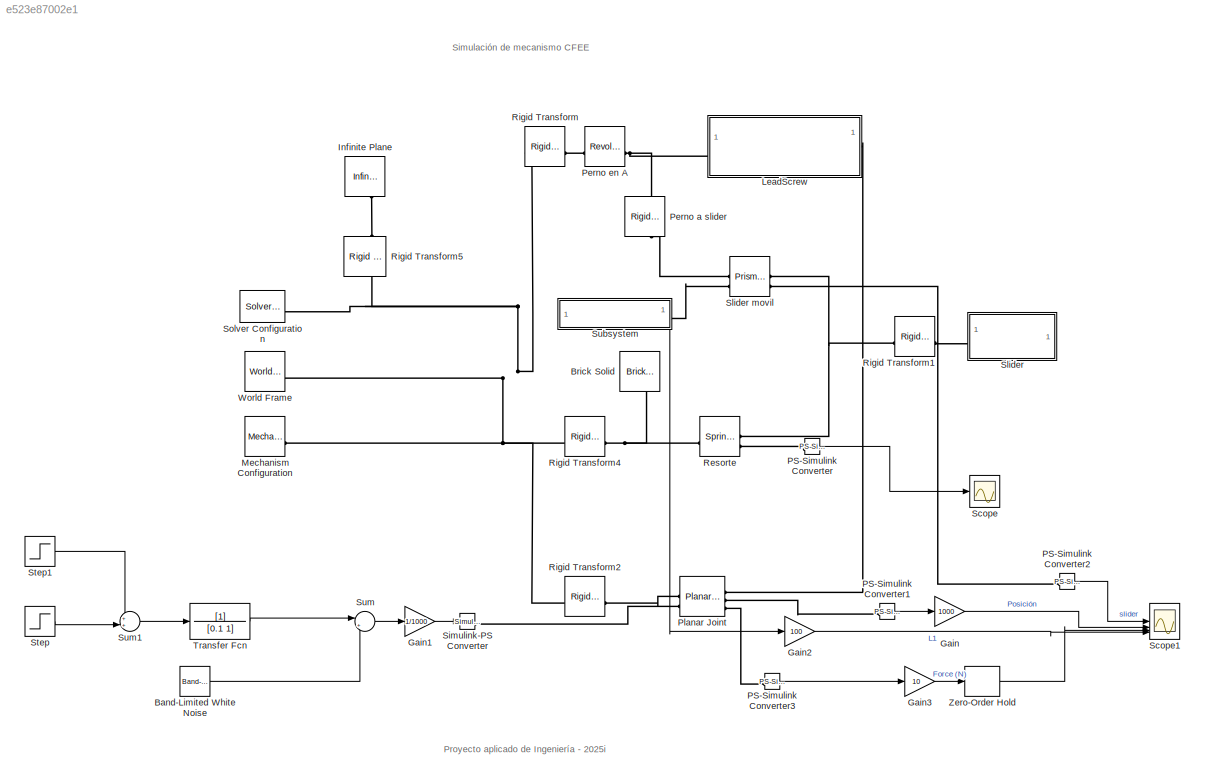
MODEL slx_e523e87002e1
KIND model
CONFIG AbsTol = auto
CONFIG EnableMultiTasking = off
CONFIG FixedStep = auto
CONFIG MaxStep = auto
CONFIG MinStep = auto
CONFIG RelTol = 1e-3
CONFIG SampleTimeConstraint = Unconstrained
CONFIG SolverName = VariableStepAuto
CONFIG StartTime = 0.0
CONFIG StopTime = 10.0
BLOCK [Reference] Band-Limited White Noise  REF=simulink/Sources/Band-Limited
White Noise
  SourceBlock = simulink/Sources/Band-Limited\nWhite Noise
  SourceType = Band-Limited White Noise.
BLOCK [Reference] Brick Solid  REF=sm_lib/Body Elements/Brick Solid
  NameLocation = left
  SourceBlock = sm_lib/Body Elements/Brick Solid
  SourceType = Brick Solid
BLOCK [Gain] Gain
  Gain = 1000
BLOCK [Gain] Gain1
  Gain = 1/1000
BLOCK [Gain] Gain2
  Gain = 100
BLOCK [Gain] Gain3
  Gain = 10
BLOCK [Reference] Infinite Plane  REF=sm_lib/Curves and Surfaces/Infinite Plane
  NameLocation = right
  SourceBlock = sm_lib/Curves and Surfaces/Infinite Plane
  SourceType = Infinite Plane
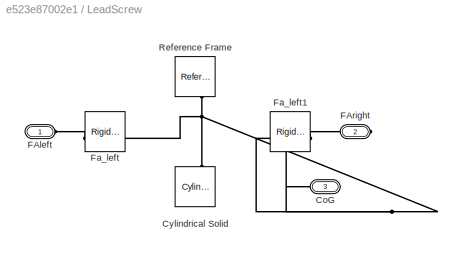
BLOCK [SubSystem] LeadScrew
BLOCK [PMIOPort] LeadScrew/CoG
  Port = 3
  Side = Right
BLOCK [Reference] LeadScrew/Cylindrical Solid  REF=sm_lib/Body Elements/Cylindrical Solid
  NameLocation = right
  SourceBlock = sm_lib/Body Elements/Cylindrical Solid
  SourceType = Cylindrical Solid
BLOCK [PMIOPort] LeadScrew/FAleft
  Side = Left
BLOCK [PMIOPort] LeadScrew/FAright
  Port = 2
  Side = Right
BLOCK [Reference] LeadScrew/Fa_left  REF=sm_lib/Frames and
Transforms/Rigid
Transform
  SourceBlock = sm_lib/Frames and\nTransforms/Rigid\nTransform
  SourceType = Rigid\nTransform
BLOCK [Reference] LeadScrew/Fa_left1  REF=sm_lib/Frames and
Transforms/Rigid
Transform
  SourceBlock = sm_lib/Frames and\nTransforms/Rigid\nTransform
  SourceType = Rigid\nTransform
BLOCK [Reference] LeadScrew/Reference Frame  REF=sm_lib/Frames and
Transforms/Reference
Frame
  NameLocation = left
  SourceBlock = sm_lib/Frames and\nTransforms/Reference\nFrame
  SourceType = Reference\nFrame
BLOCK [Reference] Mechanism Configuration  REF=sm_lib/Utilities/Mechanism
Configuration
  SourceBlock = sm_lib/Utilities/Mechanism\nConfiguration
  SourceType = Mechanism\nConfiguration
BLOCK [Reference] PS-Simulink Converter  REF=nesl_utility/PS-Simulink
Converter
  SourceBlock = nesl_utility/PS-Simulink\nConverter
  SourceType = PS-Simulink\nConverter
BLOCK [Reference] PS-Simulink Converter1  REF=nesl_utility/PS-Simulink
Converter
  SourceBlock = nesl_utility/PS-Simulink\nConverter
  SourceType = PS-Simulink\nConverter
BLOCK [Reference] PS-Simulink Converter2  REF=nesl_utility/PS-Simulink
Converter
  SourceBlock = nesl_utility/PS-Simulink\nConverter
  SourceType = PS-Simulink\nConverter
BLOCK [Reference] PS-Simulink Converter3  REF=nesl_utility/PS-Simulink
Converter
  SourceBlock = nesl_utility/PS-Simulink\nConverter
  SourceType = PS-Simulink\nConverter
BLOCK [Reference] Perno a slider  REF=sm_lib/Frames and
Transforms/Rigid
Transform
  NameLocation = left
  SourceBlock = sm_lib/Frames and\nTransforms/Rigid\nTransform
  SourceType = Rigid\nTransform
BLOCK [Reference] Perno en A  REF=sm_lib/Joints/Revolute Joint
  SourceBlock = sm_lib/Joints/Revolute Joint
  SourceType = Revolute Joint
BLOCK [Reference] Planar Joint  REF=sm_lib/Joints/Planar Joint
  SourceBlock = sm_lib/Joints/Planar Joint
  SourceType = Planar Joint
BLOCK [Reference] Resorte  REF=sm_lib/Forces and
Torques/Spring and
Damper Force
  SourceBlock = sm_lib/Forces and\nTorques/Spring and\nDamper Force
  SourceType = Spring and\nDamper Force
BLOCK [Reference] Rigid Transform  REF=sm_lib/Frames and
Transforms/Rigid
Transform
  SourceBlock = sm_lib/Frames and\nTransforms/Rigid\nTransform
  SourceType = Rigid\nTransform
BLOCK [Reference] Rigid Transform1  REF=sm_lib/Frames and
Transforms/Rigid
Transform
  SourceBlock = sm_lib/Frames and\nTransforms/Rigid\nTransform
  SourceType = Rigid\nTransform
BLOCK [Reference] Rigid Transform2  REF=sm_lib/Frames and
Transforms/Rigid
Transform
  SourceBlock = sm_lib/Frames and\nTransforms/Rigid\nTransform
  SourceType = Rigid\nTransform
BLOCK [Reference] Rigid Transform4  REF=sm_lib/Frames and
Transforms/Rigid
Transform
  SourceBlock = sm_lib/Frames and\nTransforms/Rigid\nTransform
  SourceType = Rigid\nTransform
BLOCK [Reference] Rigid Transform5  REF=sm_lib/Frames and
Transforms/Rigid
Transform
  NameLocation = right
  SourceBlock = sm_lib/Frames and\nTransforms/Rigid\nTransform
  SourceType = Rigid\nTransform
BLOCK [Scope] Scope
  ActiveDisplayYMaximum = 1
  ActiveDisplayYMinimum = -1
  Floating = off
  GraphicalSettings = {"Style":{"BackgroundColor":[0.12941176470588237,0.12941176470588237,0.12941176470588237],"AxesColor":[0.07058823529411765,0.07058823529411765,0.07058823529411765],"LabelsColor":[0.8509803921568627,0.8509803921568627,0.8509803921568627],"PreserveColors":false,"Visible":[true],"LineStyle":["-"],"LineWidth":[1.5],"BarWidth":[0.9],"LineColor":["auto"],"LineFaceAlpha":[1],"LineEdgeAlpha":[1],"Marker":...<+1903ch>
  MultipleDisplayCache = [{"MaxYLimMag":1,"MaxYLimReal":1,"MinYLimMag":0,"MinYLimReal":-1,"PlotAsMagnitudePhase":false,"ShowGrid":true,"ShowLegend":false,"Title":"%<SignalLabel>","YLabel":""}]
  NumInputPorts = 1
  ScopeFrameLocation = window
  WasSavedAsWebScope = on
  WindowPosition = [476.000000,281.000000,560.000000,420.000000,]
BLOCK [Scope] Scope1
  ActiveDisplayString = 3
  ActiveDisplayYMaximum = 8.8351095027684021
  ActiveDisplayYMinimum = -18.843729666704622
  DataLoggingVariableName = ScopeData1
  Floating = off
  GraphicalSettings = {"Style":{"BackgroundColor":[0.12941176470588237,0.12941176470588237,0.12941176470588237],"AxesColor":[0.07058823529411765,0.07058823529411765,0.07058823529411765],"LabelsColor":[0.8509803921568627,0.8509803921568627,0.8509803921568627],"PreserveColors":false,"Visible":[true,true,true,true],"LineStyle":["-","-","-.","-"],"LineWidth":[1.5,1.5,1.5,1.5],"BarWidth":[0.9,0.9,0.9,0.9],"LineColor":["auto...<+3213ch>
  LayoutDimensionsString = [2,2]
  MultipleDisplayCache = [{"MaxYLimMag":0.10625000000000001,"MaxYLimReal":0.10625000000000001,"MinYLimMag":0.043750000000000004,"MinYLimReal":0.043750000000000004,"PlotAsMagnitudePhase":false,"ShowGrid":true,"ShowLegend":false,"Title":"%<SignalLabel>","YLabel":"Desplazamiento (mm)"},{"MaxYLimMag":2.2502925747811631,"MaxYLimReal":0.25064232817888688,"MinYLimMag":0,"MinYLimReal":-2.2502925747811631,"PlotAsMagnitudePhase":fa...<+515ch>
  NumInputPorts = 4
  ScopeFrameLocation = window
  ShowTimeAxisLabel = on
  WasSavedAsWebScope = on
  WindowPosition = [1.000000,1.000000,1512.000000,916.000000,]
  YLabel = Avance L1 (cm)
BLOCK [Reference] Simulink-PS Converter  REF=nesl_utility/Simulink-PS
Converter
  SourceBlock = nesl_utility/Simulink-PS\nConverter
  SourceType = Simulink-PS\nConverter
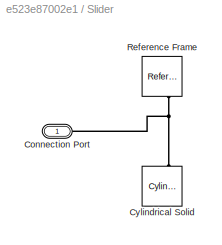
BLOCK [SubSystem] Slider
BLOCK [Reference] Slider movil  REF=sm_lib/Joints/Prismatic
Joint
  SourceBlock = sm_lib/Joints/Prismatic\nJoint
  SourceType = Prismatic\nJoint
BLOCK [PMIOPort] Slider/Connection Port
  Side = Left
BLOCK [Reference] Slider/Cylindrical Solid  REF=sm_lib/Body Elements/Cylindrical Solid
  NameLocation = right
  SourceBlock = sm_lib/Body Elements/Cylindrical Solid
  SourceType = Cylindrical Solid
BLOCK [Reference] Slider/Reference Frame  REF=sm_lib/Frames and
Transforms/Reference
Frame
  NameLocation = left
  SourceBlock = sm_lib/Frames and\nTransforms/Reference\nFrame
  SourceType = Reference\nFrame
BLOCK [Reference] Solver Configuration  REF=nesl_utility/Solver
Configuration
  SourceBlock = nesl_utility/Solver\nConfiguration
  SourceType = Solver\nConfiguration
BLOCK [Step] Step
  SampleTime = 0
  Time = 7
BLOCK [Step] Step1
  After = -2
  SampleTime = 0
  Time = 6
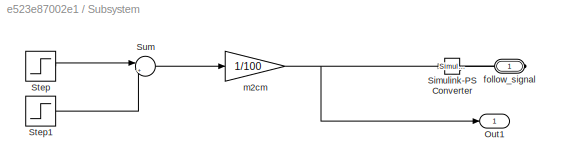
BLOCK [SubSystem] Subsystem
BLOCK [Outport] Subsystem/Out1
BLOCK [Reference] Subsystem/Simulink-PS Converter  REF=nesl_utility/Simulink-PS
Converter
  SourceBlock = nesl_utility/Simulink-PS\nConverter
  SourceType = Simulink-PS\nConverter
BLOCK [Step] Subsystem/Step
  After = 10
  Before = 5
  SampleTime = 0
  Time = 4
BLOCK [Step] Subsystem/Step1
  After = -3
  SampleTime = 0
  Time = 8
BLOCK [Sum] Subsystem/Sum
  Inputs = |++
BLOCK [PMIOPort] Subsystem/follow_signal
  Side = Right
BLOCK [Gain] Subsystem/m2cm
  Gain = 1/100
BLOCK [Sum] Sum
  Inputs = |++
BLOCK [Sum] Sum1
  Inputs = ++|
BLOCK [TransferFcn] Transfer Fcn
  Denominator = [0.1 1]
BLOCK [Reference] World Frame  REF=sm_lib/Frames and
Transforms/World Frame
  SourceBlock = sm_lib/Frames and\nTransforms/World Frame
  SourceType = World Frame
BLOCK [ZeroOrderHold] Zero-Order Hold
  SampleTime = -1
ANNOTATION (root): Simulación de mecanismo CFEE
ANNOTATION (root): Proyecto aplicado de Ingeniería - 2025i
LINE Band-Limited White Noise:1 -> Sum:2
LINE Gain1:1 -> Simulink-PS Converter:1
LINE Gain2:1 -> Scope1:4
LINE Gain3:1 -> Zero-Order Hold:1
LINE Gain:1 -> Scope1:2
LINE PS-Simulink Converter1:1 -> Gain:1
LINE PS-Simulink Converter2:1 -> Scope1:1
LINE PS-Simulink Converter3:1 -> Gain3:1
LINE PS-Simulink Converter:1 -> Scope:1
LINE Step1:1 -> Sum1:1
LINE Step:1 -> Sum1:2
LINE Subsystem/Step1:1 -> Subsystem/Sum:2
LINE Subsystem/Step:1 -> Subsystem/Sum:1
LINE Subsystem/Sum:1 -> Subsystem/m2cm:1
NET Subsystem/m2cm:1 -> Subsystem/Out1:1, Subsystem/Simulink-PS Converter:1
LINE Subsystem:1 -> Gain2:1
LINE Sum1:1 -> Transfer Fcn:1
LINE Sum:1 -> Gain1:1
LINE Transfer Fcn:1 -> Sum:1
LINE Zero-Order Hold:1 -> Scope1:3
PNET net1: Brick Solid:RConn1 -- Resorte:LConn1 -- Rigid Transform4:RConn1
PLINE Infinite Plane:LConn1 -- Rigid Transform5:RConn1
PNET net2: LeadScrew/CoG:RConn1 -- LeadScrew/Cylindrical Solid:RConn1 -- LeadScrew/Fa_left1:LConn1 -- LeadScrew/Fa_left:RConn1 -- LeadScrew/Reference Frame:RConn1
PLINE LeadScrew/FAleft:RConn1 -- LeadScrew/Fa_left:LConn1
PLINE LeadScrew/FAright:RConn1 -- LeadScrew/Fa_left1:RConn1
PNET net3: LeadScrew:LConn1 -- Perno a slider:LConn1 -- Perno en A:RConn1
PLINE LeadScrew:RConn1 -- Planar Joint:RConn1
PNET net4: Mechanism Configuration:RConn1 -- Rigid Transform2:LConn1 -- Rigid Transform4:LConn1 -- Rigid Transform5:LConn1 -- Rigid Transform:LConn1 -- Solver Configuration:RConn1 -- World Frame:RConn1
PLINE PS-Simulink Converter1:LConn1 -- Planar Joint:RConn2
PLINE PS-Simulink Converter2:LConn1 -- Slider movil:RConn2
PLINE PS-Simulink Converter3:LConn1 -- Planar Joint:RConn3
PLINE PS-Simulink Converter:LConn1 -- Resorte:RConn2
PLINE Perno a slider:RConn1 -- Slider movil:LConn1
PLINE Perno en A:LConn1 -- Rigid Transform:RConn1
PLINE Planar Joint:LConn1 -- Rigid Transform2:RConn1
PLINE Planar Joint:LConn2 -- Simulink-PS Converter:RConn1
PNET net5: Resorte:RConn1 -- Rigid Transform1:LConn1 -- Slider movil:RConn1
PLINE Rigid Transform1:RConn1 -- Slider:LConn1
PLINE Slider movil:LConn2 -- Subsystem:RConn1
PNET net6: Slider/Connection Port:RConn1 -- Slider/Cylindrical Solid:RConn1 -- Slider/Reference Frame:RConn1
PLINE Subsystem/Simulink-PS Converter:RConn1 -- Subsystem/follow_signal:RConn1
note: NET lines group one-source signal fan-out (src -> all destinations, sorted); 1:1 wires keep LINE; PNET lines group multi-terminal physical nets as a canonical sorted terminal list (undirected conserving connections); 2-terminal nets keep the pairwise PLINE form
